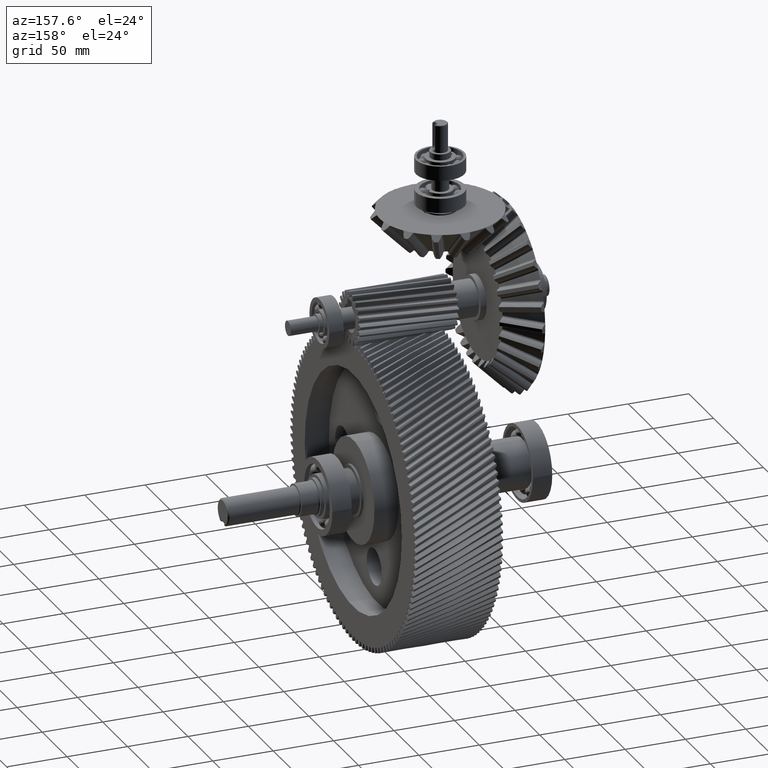
[diagram: clean part render]
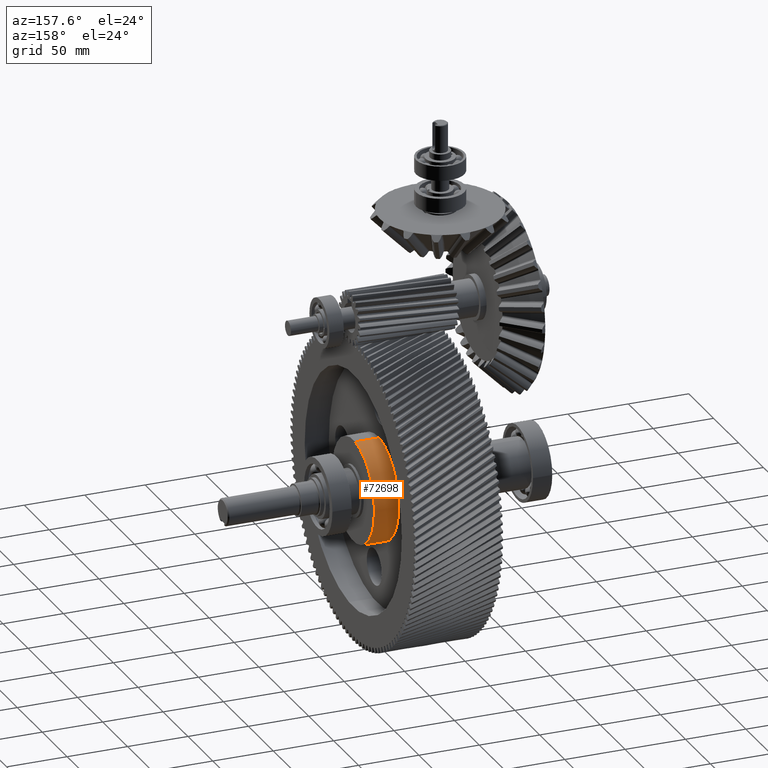
[diagram: same view with one face highlighted and labeled with its STEP entity id]
A machine part, auxiliary view. The second image highlights one B-rep face of the part: STEP entity #72698.
In plain terms, the highlighted cylindrical surface (partial cylindrical patch) has radius 42.5 mm, axis along (-1, 0, 0).
Its self-contained STEP definition (entity closure, byte-faithful):
#37281=CARTESIAN_POINT('',(0.E0,0.E0,-7.195169453850E1));
#37282=DIRECTION('',(0.E0,0.E0,1.E0));
#37283=DIRECTION('',(1.E0,0.E0,0.E0));
#37284=AXIS2_PLACEMENT_3D('',#37281,#37282,#37283);
#45502=CARTESIAN_POINT('',(0.E0,0.E0,-5.195169453850E1));
#45503=DIRECTION('',(0.E0,0.E0,-1.E0));
#45504=DIRECTION('',(-1.E0,0.E0,0.E0));
#45505=AXIS2_PLACEMENT_3D('',#45502,#45503,#45504);
#45547=DIRECTION('',(0.E0,0.E0,1.E0));
#45548=VECTOR('',#45547,2.E1);
#45549=CARTESIAN_POINT('',(4.25E1,0.E0,-7.195169453850E1));
#45550=LINE('',#45549,#45548);
#45551=DIRECTION('',(0.E0,0.E0,1.E0));
#45552=VECTOR('',#45551,2.E1);
#45553=CARTESIAN_POINT('',(-4.25E1,0.E0,-7.195169453850E1));
#45554=LINE('',#45553,#45552);
#48148=CARTESIAN_POINT('',(4.25E1,0.E0,-5.195169453850E1));
#48149=CARTESIAN_POINT('',(-4.25E1,0.E0,-5.195169453850E1));
#48150=VERTEX_POINT('',#48148);
#48151=VERTEX_POINT('',#48149);
#48156=CARTESIAN_POINT('',(-4.25E1,0.E0,-7.195169453850E1));
#48157=CARTESIAN_POINT('',(4.25E1,-1.040932590012E-14,-7.195169453850E1));
#48158=VERTEX_POINT('',#48156);
#48159=VERTEX_POINT('',#48157);
#72687=CARTESIAN_POINT('',(0.E0,0.E0,-7.195169453850E1));
#72688=DIRECTION('',(0.E0,0.E0,1.E0));
#72689=DIRECTION('',(1.E0,0.E0,0.E0));
#72690=AXIS2_PLACEMENT_3D('',#72687,#72688,#72689);
#72691=CYLINDRICAL_SURFACE('',#72690,4.25E1);
#72692=ORIENTED_EDGE('',*,*,#51315,.F.);
#72693=ORIENTED_EDGE('',*,*,#72682,.T.);
#72694=ORIENTED_EDGE('',*,*,#72644,.F.);
#72695=ORIENTED_EDGE('',*,*,#72679,.F.);
#72696=EDGE_LOOP('',(#72692,#72693,#72694,#72695));
#72697=FACE_OUTER_BOUND('',#72696,.F.);
#72698=ADVANCED_FACE('',(#72697),#72691,.T.);
#37285=CIRCLE('',#37284,4.25E1);
#45506=CIRCLE('',#45505,4.25E1);
#51315=EDGE_CURVE('',#48159,#48158,#37285,.T.);
#72644=EDGE_CURVE('',#48151,#48150,#45506,.T.);
#72679=EDGE_CURVE('',#48158,#48151,#45554,.T.);
#72682=EDGE_CURVE('',#48159,#48150,#45550,.T.);